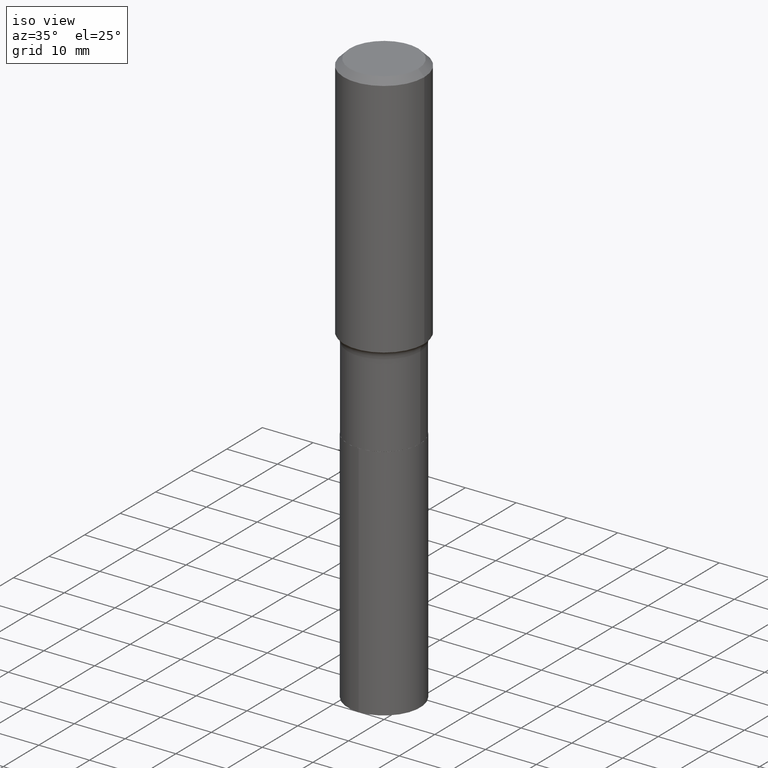
[diagram: clean part render]
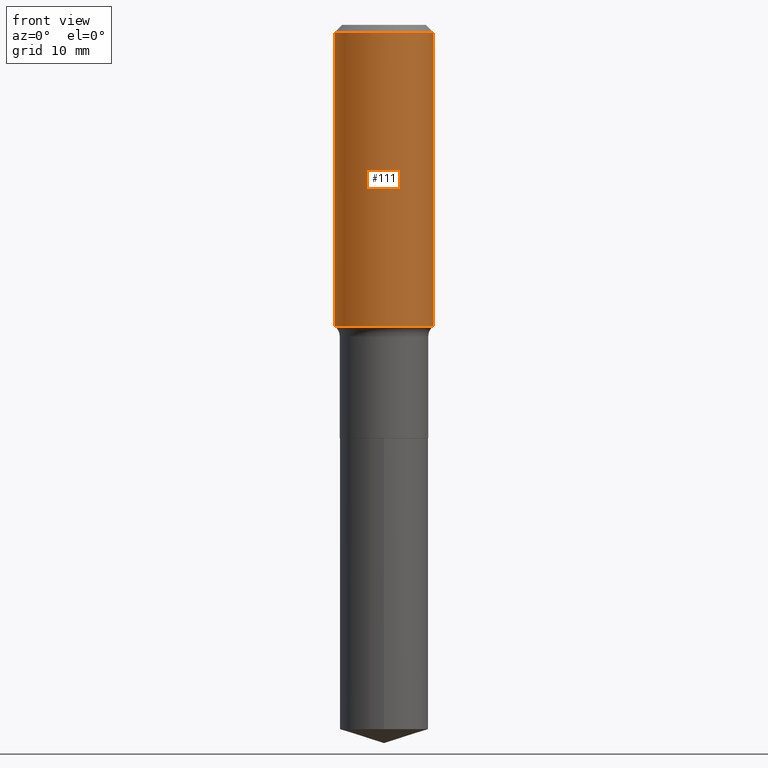
[diagram: tour spotlight — one face highlighted and labeled with its STEP entity id]
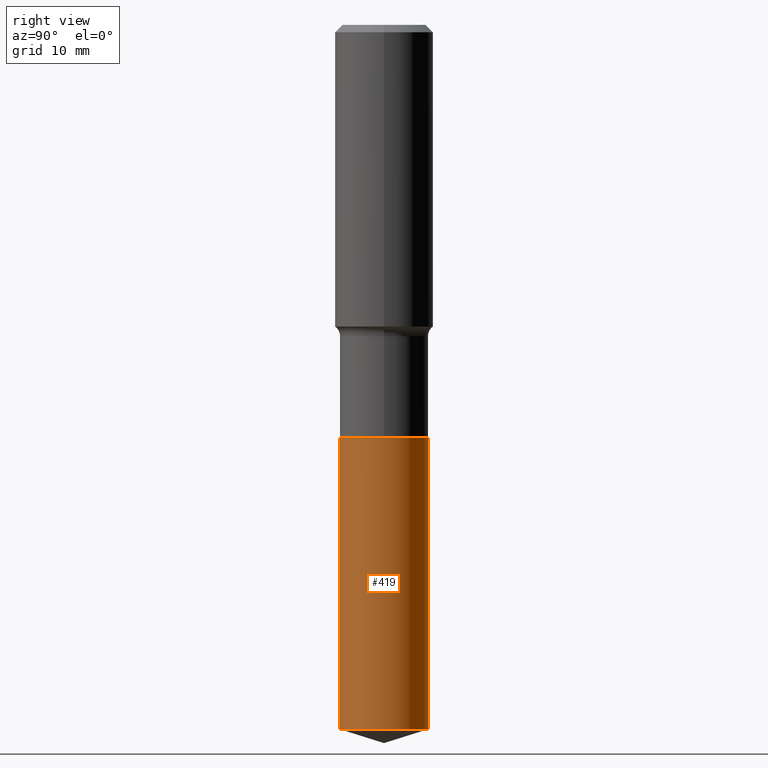
[diagram: tour spotlight — one face highlighted and labeled with its STEP entity id]
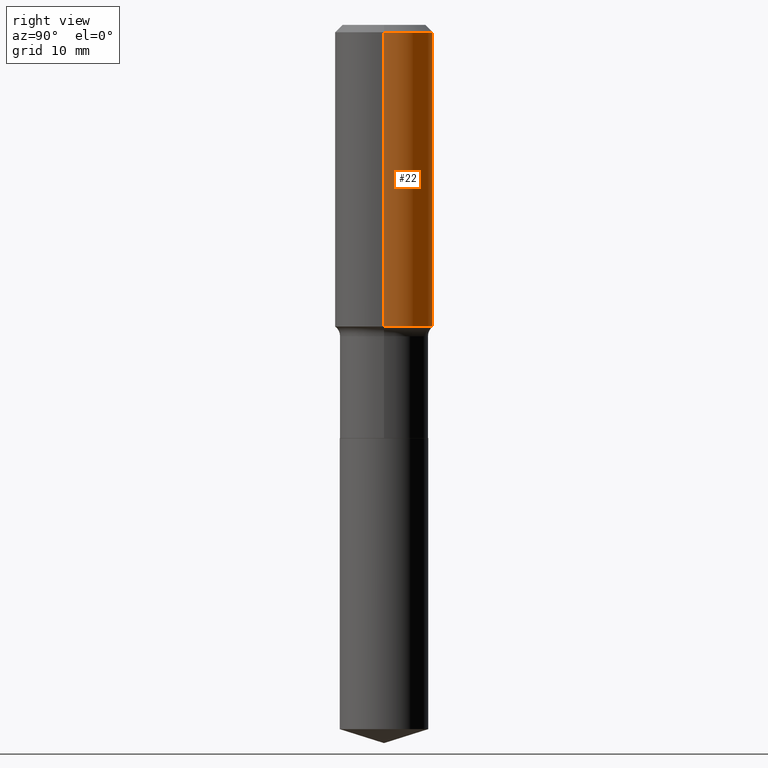
[diagram: tour spotlight — one face highlighted and labeled with its STEP entity id]
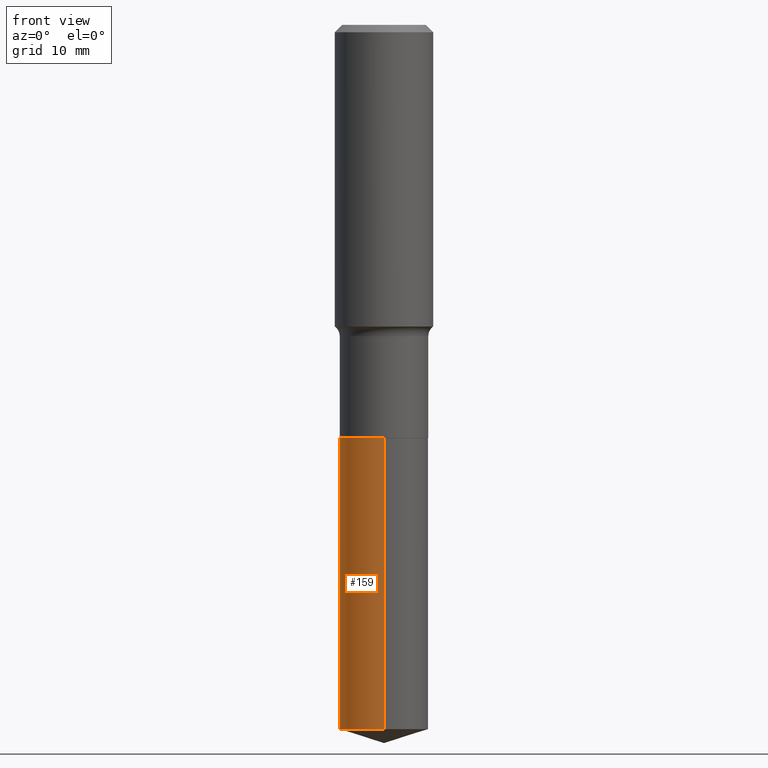
[diagram: tour spotlight — one face highlighted and labeled with its STEP entity id]
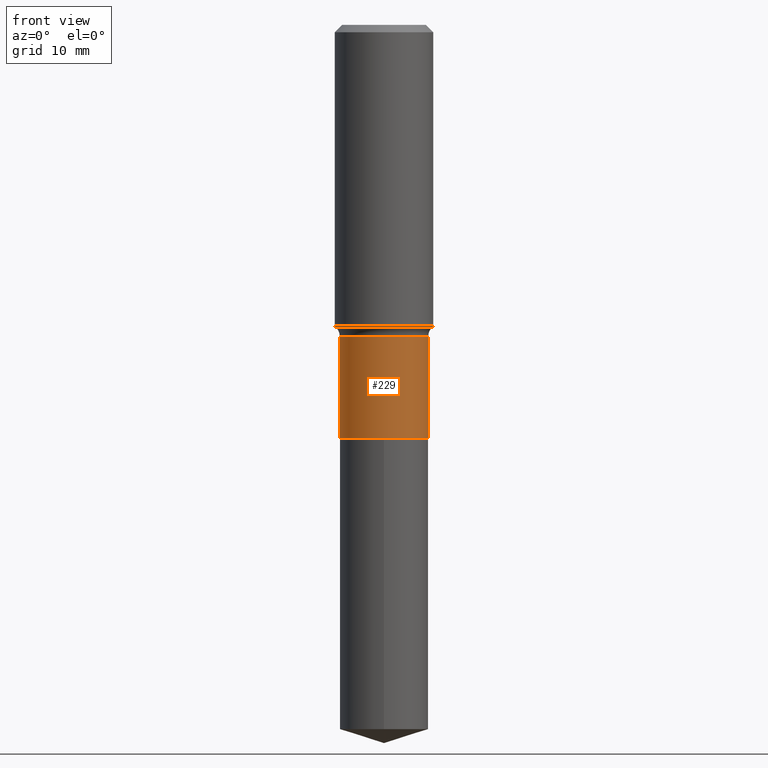
[diagram: tour spotlight — one face highlighted and labeled with its STEP entity id]
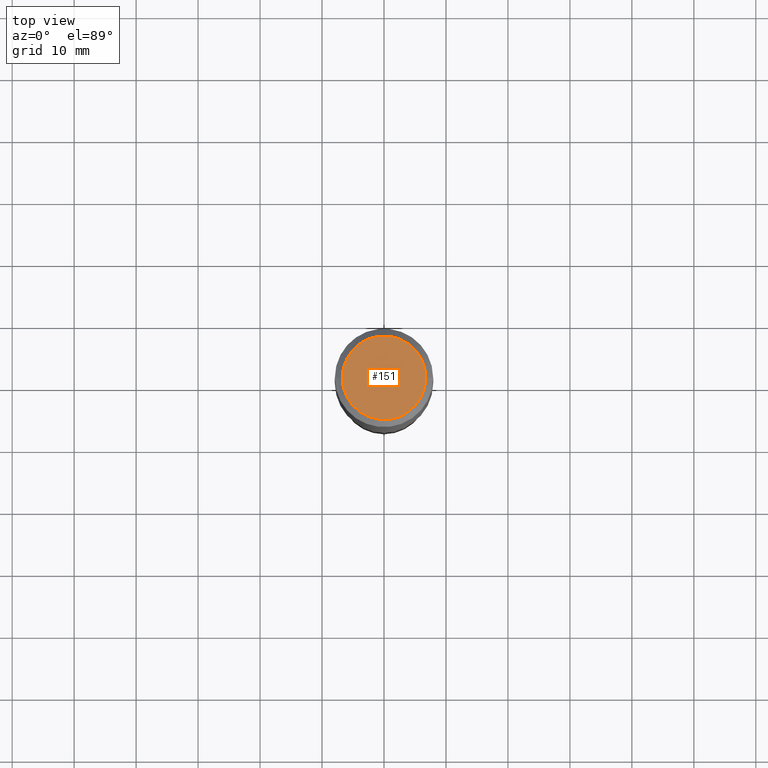
[diagram: tour spotlight — one face highlighted and labeled with its STEP entity id]
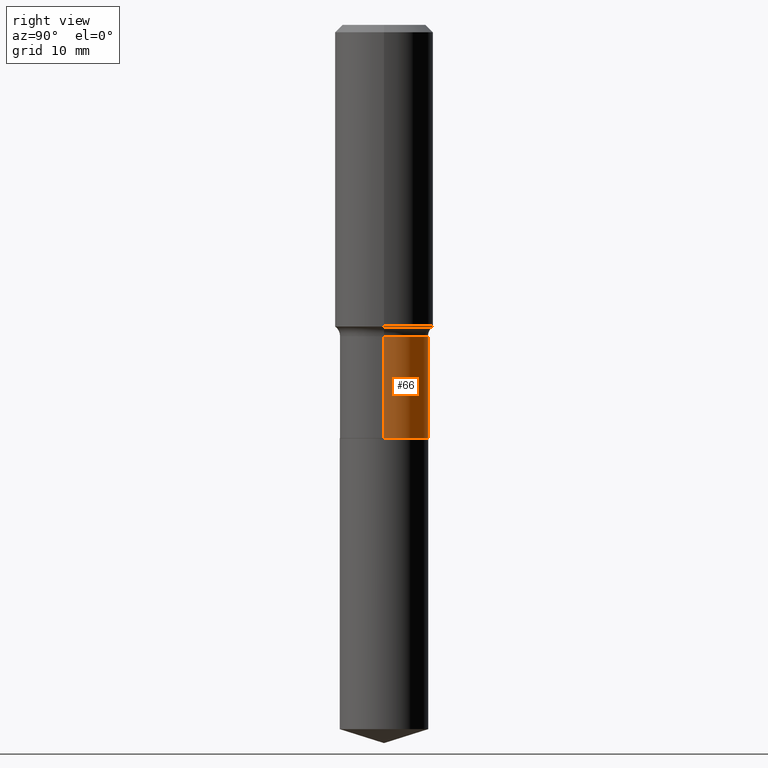
[diagram: tour spotlight — one face highlighted and labeled with its STEP entity id]
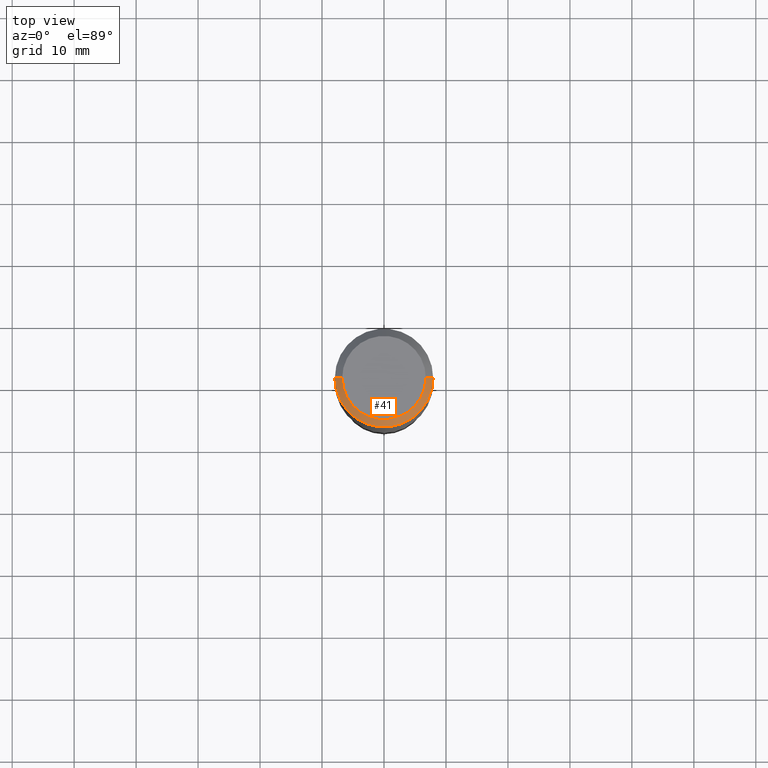
[diagram: tour spotlight — one face highlighted and labeled with its STEP entity id]
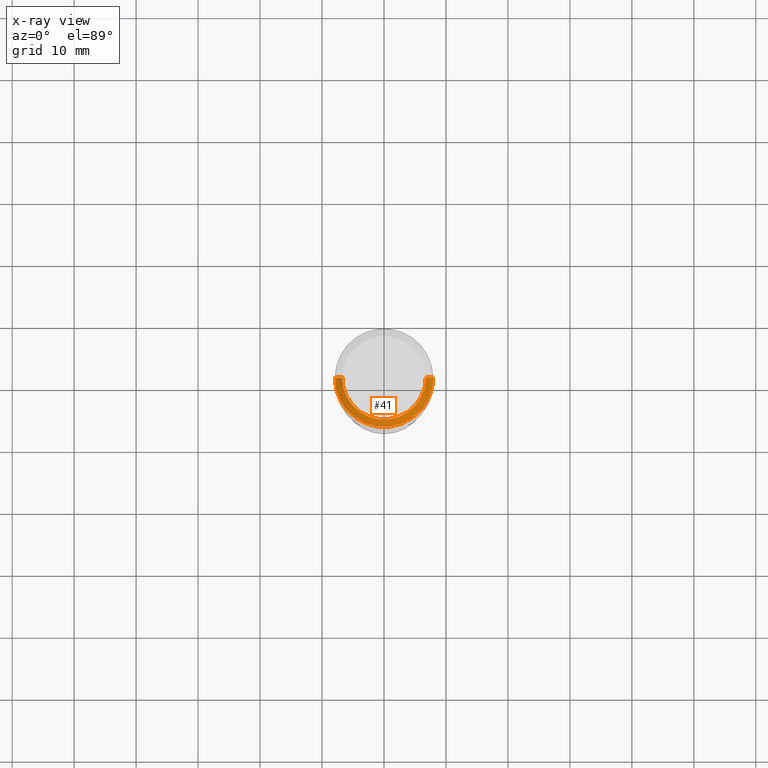
[diagram: x-ray of the same camera — body ghosted, this tour face saturated]
A machine part: a face-by-face anatomy tour. The part has 17 B-rep faces; the first image is the clean iso view, then the 8 largest visible faces are spotlighted one at a time (largest first), each with its STEP entity span.

Face 1 — front view, entity #111. In plain terms, the highlighted cylindrical surface (partial cylindrical patch) has radius 7.9375 mm, axis along (-0, 0, 1).
Definition (entity closure, byte-faithful):
#20 = CARTESIAN_POINT ( 'NONE',  ( -0.3125000000000000555, 2.220446049250313475E-15, -1.537167215704658512E-29 ) ) ;
#24 = EDGE_CURVE ( 'NONE', #148, #383, #233, .T. ) ;
#37 = CARTESIAN_POINT ( 'NONE',  ( 0.3125000000000000555, -2.182175836776958741E-15, 1.523805242436230356E-29 ) ) ;
#46 = CARTESIAN_POINT ( 'NONE',  ( 0.000000000000000000, 0.000000000000000000, 0.000000000000000000 ) ) ;
#71 = DIRECTION ( 'NONE',  ( -2.445468806185136597E-29, 3.491481338843145583E-15, 1.000000000000000000 ) ) ;
#90 = AXIS2_PLACEMENT_3D ( 'NONE', #98, #71, #180 ) ;
#98 = CARTESIAN_POINT ( 'NONE',  ( 1.146313502899289261E-30, -1.636631877582734044E-16, -0.04687500000000027062 ) ) ;
#103 = EDGE_CURVE ( 'NONE', #232, #148, #489, .T. ) ;
#111 = ADVANCED_FACE ( 'NONE', ( #354 ), #473, .T. ) ;
#144 = ORIENTED_EDGE ( 'NONE', *, *, #103, .T. ) ;
#148 = VERTEX_POINT ( 'NONE', #316 ) ;
#157 = DIRECTION ( 'NONE',  ( -2.445468806185136597E-29, 3.491481338843145583E-15, 1.000000000000000000 ) ) ;
#158 = VECTOR ( 'NONE', #186, 39.37007874015748143 ) ;
#169 = LINE ( 'NONE', #20, #179 ) ;
#179 = VECTOR ( 'NONE', #455, 39.37007874015748143 ) ;
#180 = DIRECTION ( 'NONE',  ( 1.000000000000000000, -6.982962677686266711E-15, 0.000000000000000000 ) ) ;
#186 = DIRECTION ( 'NONE',  ( -2.445468806185136877E-29, 3.491481338843145188E-15, 1.000000000000000000 ) ) ;
#217 = VERTEX_POINT ( 'NONE', #442 ) ;
#232 = VERTEX_POINT ( 'NONE', #296 ) ;
#233 = LINE ( 'NONE', #37, #158 ) ;
#241 = EDGE_CURVE ( 'NONE', #217, #383, #382, .T. ) ;
#265 = ORIENTED_EDGE ( 'NONE', *, *, #24, .T. ) ;
#285 = ORIENTED_EDGE ( 'NONE', *, *, #287, .F. ) ;
#287 = EDGE_CURVE ( 'NONE', #232, #217, #169, .T. ) ;
#288 = CARTESIAN_POINT ( 'NONE',  ( 0.3125000000000000000, -2.345839024535231998E-15, -0.04687500000000027062 ) ) ;
#296 = CARTESIAN_POINT ( 'NONE',  ( -0.3125000000000001665, -4.468053930239329138E-15, -1.915662531281288938 ) ) ;
#316 = CARTESIAN_POINT ( 'NONE',  ( 0.3125000000000001665, -8.870675816266601355E-15, -1.915662531281288938 ) ) ;
#322 = DIRECTION ( 'NONE',  ( 1.000000000000000000, -6.982962677686268288E-15, 0.000000000000000000 ) ) ;
#349 = EDGE_LOOP ( 'NONE', ( #285, #144, #265, #369 ) ) ;
#354 = FACE_OUTER_BOUND ( 'NONE', #349, .T. ) ;
#369 = ORIENTED_EDGE ( 'NONE', *, *, #241, .F. ) ;
#382 = CIRCLE ( 'NONE', #90, 0.3125000000000000000 ) ;
#383 = VERTEX_POINT ( 'NONE', #288 ) ;
#391 = DIRECTION ( 'NONE',  ( 1.000000000000000000, -6.982962677686266711E-15, 4.876176775795936353E-29 ) ) ;
#394 = DIRECTION ( 'NONE',  ( -2.445468806185136597E-29, 3.491481338843145583E-15, 1.000000000000000000 ) ) ;
#442 = CARTESIAN_POINT ( 'NONE',  ( -0.3125000000000000000, -1.205635534373644460E-15, -0.04687500000000027062 ) ) ;
#446 = AXIS2_PLACEMENT_3D ( 'NONE', #46, #157, #391 ) ;
#455 = DIRECTION ( 'NONE',  ( -2.445468806185136877E-29, 3.491481338843145188E-15, 1.000000000000000000 ) ) ;
#465 = CARTESIAN_POINT ( 'NONE',  ( 4.684692963426050307E-29, -6.688499979489643797E-15, -1.915662531281288938 ) ) ;
#466 = AXIS2_PLACEMENT_3D ( 'NONE', #465, #394, #322 ) ;
#473 = CYLINDRICAL_SURFACE ( 'NONE', #446, 0.3125000000000000555 ) ;
#489 = CIRCLE ( 'NONE', #466, 0.3125000000000001665 ) ;

Face 2 — right view, entity #419. In plain terms, the highlighted cylindrical surface (partial cylindrical patch) has radius 7.1437 mm, axis along (-0, 0, 1).
Definition (entity closure, byte-faithful):
#1 = AXIS2_PLACEMENT_3D ( 'NONE', #376, #208, #325 ) ;
#2 = ORIENTED_EDGE ( 'NONE', *, *, #140, .F. ) ;
#9 = VECTOR ( 'NONE', #10, 39.37007874015748143 ) ;
#10 = DIRECTION ( 'NONE',  ( -2.445244707240388193E-29, 3.491802261286945362E-15, 1.000000000000000000 ) ) ;
#48 = CARTESIAN_POINT ( 'NONE',  ( -1.963958253099198220E-15, -0.2812500000000091593, -2.624999999999998224 ) ) ;
#60 = EDGE_CURVE ( 'NONE', #270, #409, #178, .T. ) ;
#63 = CYLINDRICAL_SURFACE ( 'NONE', #1, 0.2812500000000000000 ) ;
#65 = ORIENTED_EDGE ( 'NONE', *, *, #190, .T. ) ;
#75 = ORIENTED_EDGE ( 'NONE', *, *, #60, .F. ) ;
#125 = DIRECTION ( 'NONE',  ( -6.982962677686266711E-15, -1.000000000000000000, 3.885294924322507688E-15 ) ) ;
#140 = EDGE_CURVE ( 'NONE', #228, #270, #274, .T. ) ;
#141 = EDGE_LOOP ( 'NONE', ( #65, #196, #75, #2 ) ) ;
#168 = CARTESIAN_POINT ( 'NONE',  ( 1.998401444325391424E-15, 0.2812499999999908407, -2.625000000000000444 ) ) ;
#173 = DIRECTION ( 'NONE',  ( -2.445244707240388193E-29, 3.491802261286945362E-15, 1.000000000000000000 ) ) ;
#176 = LINE ( 'NONE', #253, #279 ) ;
#178 = CIRCLE ( 'NONE', #471, 0.2812500000000000000 ) ;
#187 = AXIS2_PLACEMENT_3D ( 'NONE', #485, #371, #205 ) ;
#190 = EDGE_CURVE ( 'NONE', #228, #450, #400, .T. ) ;
#196 = ORIENTED_EDGE ( 'NONE', *, *, #306, .T. ) ;
#205 = DIRECTION ( 'NONE',  ( -6.982962677686266711E-15, -1.000000000000000000, 3.885294924322507688E-15 ) ) ;
#208 = DIRECTION ( 'NONE',  ( -2.445244707240388193E-29, 3.491802261286945362E-15, 1.000000000000000000 ) ) ;
#222 = CARTESIAN_POINT ( 'NONE',  ( -1.963958253099198220E-15, -0.2812500000000091593, -2.624999999999998224 ) ) ;
#228 = VERTEX_POINT ( 'NONE', #447 ) ;
#253 = CARTESIAN_POINT ( 'NONE',  ( 1.998401444325345670E-15, 0.2812499999999908407, -2.625000000000000444 ) ) ;
#270 = VERTEX_POINT ( 'NONE', #222 ) ;
#274 = LINE ( 'NONE', #48, #9 ) ;
#279 = VECTOR ( 'NONE', #173, 39.37007874015748143 ) ;
#306 = EDGE_CURVE ( 'NONE', #450, #409, #176, .T. ) ;
#325 = DIRECTION ( 'NONE',  ( -6.982962677686266711E-15, -1.000000000000000000, 3.885294924322507688E-15 ) ) ;
#341 = FACE_OUTER_BOUND ( 'NONE', #141, .T. ) ;
#359 = DIRECTION ( 'NONE',  ( -2.445244707240388193E-29, 3.491802261286945362E-15, 1.000000000000000000 ) ) ;
#371 = DIRECTION ( 'NONE',  ( -2.445244707240388193E-29, 3.491802261286945362E-15, 1.000000000000000000 ) ) ;
#376 = CARTESIAN_POINT ( 'NONE',  ( 6.419355616235982445E-29, -9.165138514463255034E-15, -2.624999999999999556 ) ) ;
#389 = CARTESIAN_POINT ( 'NONE',  ( 6.419355616235982445E-29, -9.165138514463255034E-15, -2.624999999999999556 ) ) ;
#400 = CIRCLE ( 'NONE', #187, 0.2812500000000000000 ) ;
#403 = CARTESIAN_POINT ( 'NONE',  ( 1.998401444325390636E-15, 0.2812499999999843459, -4.473822215627788701 ) ) ;
#409 = VERTEX_POINT ( 'NONE', #168 ) ;
#419 = ADVANCED_FACE ( 'NONE', ( #341 ), #63, .T. ) ;
#447 = CARTESIAN_POINT ( 'NONE',  ( -1.963958253099152466E-15, -0.2812500000000155431, -4.473822215627786036 ) ) ;
#450 = VERTEX_POINT ( 'NONE', #403 ) ;
#471 = AXIS2_PLACEMENT_3D ( 'NONE', #389, #359, #125 ) ;
#485 = CARTESIAN_POINT ( 'NONE',  ( 1.094017835362827673E-28, -1.562086010770990401E-14, -4.473822215627787813 ) ) ;

Face 3 — right view, entity #22. In plain terms, the highlighted cylindrical surface (partial cylindrical patch) has radius 7.9375 mm, axis along (-0, 0, 1).
Definition (entity closure, byte-faithful):
#20 = CARTESIAN_POINT ( 'NONE',  ( -0.3125000000000000555, 2.220446049250313475E-15, -1.537167215704658512E-29 ) ) ;
#22 = ADVANCED_FACE ( 'NONE', ( #269 ), #82, .T. ) ;
#24 = EDGE_CURVE ( 'NONE', #148, #383, #233, .T. ) ;
#37 = CARTESIAN_POINT ( 'NONE',  ( 0.3125000000000000555, -2.182175836776958741E-15, 1.523805242436230356E-29 ) ) ;
#64 = CARTESIAN_POINT ( 'NONE',  ( 4.684692963426050307E-29, -6.688499979489643797E-15, -1.915662531281288938 ) ) ;
#72 = EDGE_LOOP ( 'NONE', ( #210, #477, #424, #109 ) ) ;
#78 = AXIS2_PLACEMENT_3D ( 'NONE', #387, #464, #117 ) ;
#82 = CYLINDRICAL_SURFACE ( 'NONE', #78, 0.3125000000000000555 ) ;
#108 = AXIS2_PLACEMENT_3D ( 'NONE', #212, #130, #175 ) ;
#109 = ORIENTED_EDGE ( 'NONE', *, *, #24, .F. ) ;
#117 = DIRECTION ( 'NONE',  ( 1.000000000000000000, -6.982962677686266711E-15, 4.876176775795936353E-29 ) ) ;
#130 = DIRECTION ( 'NONE',  ( -2.445468806185136597E-29, 3.491481338843145583E-15, 1.000000000000000000 ) ) ;
#139 = DIRECTION ( 'NONE',  ( 1.000000000000000000, -6.982962677686268288E-15, 0.000000000000000000 ) ) ;
#148 = VERTEX_POINT ( 'NONE', #316 ) ;
#158 = VECTOR ( 'NONE', #186, 39.37007874015748143 ) ;
#169 = LINE ( 'NONE', #20, #179 ) ;
#175 = DIRECTION ( 'NONE',  ( 1.000000000000000000, -6.982962677686266711E-15, 0.000000000000000000 ) ) ;
#179 = VECTOR ( 'NONE', #455, 39.37007874015748143 ) ;
#186 = DIRECTION ( 'NONE',  ( -2.445468806185136877E-29, 3.491481338843145188E-15, 1.000000000000000000 ) ) ;
#210 = ORIENTED_EDGE ( 'NONE', *, *, #337, .T. ) ;
#212 = CARTESIAN_POINT ( 'NONE',  ( 1.146313502899289261E-30, -1.636631877582734044E-16, -0.04687500000000027062 ) ) ;
#216 = DIRECTION ( 'NONE',  ( -2.445468806185136597E-29, 3.491481338843145583E-15, 1.000000000000000000 ) ) ;
#217 = VERTEX_POINT ( 'NONE', #442 ) ;
#232 = VERTEX_POINT ( 'NONE', #296 ) ;
#233 = LINE ( 'NONE', #37, #158 ) ;
#269 = FACE_OUTER_BOUND ( 'NONE', #72, .T. ) ;
#287 = EDGE_CURVE ( 'NONE', #232, #217, #169, .T. ) ;
#288 = CARTESIAN_POINT ( 'NONE',  ( 0.3125000000000000000, -2.345839024535231998E-15, -0.04687500000000027062 ) ) ;
#296 = CARTESIAN_POINT ( 'NONE',  ( -0.3125000000000001665, -4.468053930239329138E-15, -1.915662531281288938 ) ) ;
#309 = AXIS2_PLACEMENT_3D ( 'NONE', #64, #216, #139 ) ;
#316 = CARTESIAN_POINT ( 'NONE',  ( 0.3125000000000001665, -8.870675816266601355E-15, -1.915662531281288938 ) ) ;
#323 = CIRCLE ( 'NONE', #108, 0.3125000000000000000 ) ;
#337 = EDGE_CURVE ( 'NONE', #148, #232, #416, .T. ) ;
#372 = EDGE_CURVE ( 'NONE', #383, #217, #323, .T. ) ;
#383 = VERTEX_POINT ( 'NONE', #288 ) ;
#387 = CARTESIAN_POINT ( 'NONE',  ( 0.000000000000000000, 0.000000000000000000, 0.000000000000000000 ) ) ;
#416 = CIRCLE ( 'NONE', #309, 0.3125000000000001665 ) ;
#424 = ORIENTED_EDGE ( 'NONE', *, *, #372, .F. ) ;
#442 = CARTESIAN_POINT ( 'NONE',  ( -0.3125000000000000000, -1.205635534373644460E-15, -0.04687500000000027062 ) ) ;
#455 = DIRECTION ( 'NONE',  ( -2.445468806185136877E-29, 3.491481338843145188E-15, 1.000000000000000000 ) ) ;
#464 = DIRECTION ( 'NONE',  ( -2.445468806185136597E-29, 3.491481338843145583E-15, 1.000000000000000000 ) ) ;
#477 = ORIENTED_EDGE ( 'NONE', *, *, #287, .T. ) ;

Face 4 — front view, entity #159. In plain terms, the highlighted cylindrical surface (partial cylindrical patch) has radius 7.1437 mm, axis along (-0, 0, 1).
Definition (entity closure, byte-faithful):
#6 = DIRECTION ( 'NONE',  ( -2.445244707240388193E-29, 3.491802261286945362E-15, 1.000000000000000000 ) ) ;
#9 = VECTOR ( 'NONE', #10, 39.37007874015748143 ) ;
#10 = DIRECTION ( 'NONE',  ( -2.445244707240388193E-29, 3.491802261286945362E-15, 1.000000000000000000 ) ) ;
#32 = ORIENTED_EDGE ( 'NONE', *, *, #306, .F. ) ;
#48 = CARTESIAN_POINT ( 'NONE',  ( -1.963958253099198220E-15, -0.2812500000000091593, -2.624999999999998224 ) ) ;
#70 = AXIS2_PLACEMENT_3D ( 'NONE', #294, #246, #479 ) ;
#85 = CARTESIAN_POINT ( 'NONE',  ( 1.094017835362827673E-28, -1.562086010770990401E-14, -4.473822215627787813 ) ) ;
#120 = EDGE_CURVE ( 'NONE', #450, #228, #219, .T. ) ;
#122 = DIRECTION ( 'NONE',  ( -6.982962677686266711E-15, -1.000000000000000000, 3.885294924322507688E-15 ) ) ;
#140 = EDGE_CURVE ( 'NONE', #228, #270, #274, .T. ) ;
#159 = ADVANCED_FACE ( 'NONE', ( #430 ), #312, .T. ) ;
#168 = CARTESIAN_POINT ( 'NONE',  ( 1.998401444325391424E-15, 0.2812499999999908407, -2.625000000000000444 ) ) ;
#173 = DIRECTION ( 'NONE',  ( -2.445244707240388193E-29, 3.491802261286945362E-15, 1.000000000000000000 ) ) ;
#174 = EDGE_LOOP ( 'NONE', ( #32, #345, #223, #177 ) ) ;
#176 = LINE ( 'NONE', #253, #279 ) ;
#177 = ORIENTED_EDGE ( 'NONE', *, *, #317, .F. ) ;
#219 = CIRCLE ( 'NONE', #426, 0.2812500000000000000 ) ;
#222 = CARTESIAN_POINT ( 'NONE',  ( -1.963958253099198220E-15, -0.2812500000000091593, -2.624999999999998224 ) ) ;
#223 = ORIENTED_EDGE ( 'NONE', *, *, #140, .T. ) ;
#228 = VERTEX_POINT ( 'NONE', #447 ) ;
#242 = DIRECTION ( 'NONE',  ( -6.982962677686266711E-15, -1.000000000000000000, 3.885294924322507688E-15 ) ) ;
#246 = DIRECTION ( 'NONE',  ( -2.445244707240388193E-29, 3.491802261286945362E-15, 1.000000000000000000 ) ) ;
#253 = CARTESIAN_POINT ( 'NONE',  ( 1.998401444325345670E-15, 0.2812499999999908407, -2.625000000000000444 ) ) ;
#270 = VERTEX_POINT ( 'NONE', #222 ) ;
#272 = AXIS2_PLACEMENT_3D ( 'NONE', #353, #6, #122 ) ;
#274 = LINE ( 'NONE', #48, #9 ) ;
#279 = VECTOR ( 'NONE', #173, 39.37007874015748143 ) ;
#294 = CARTESIAN_POINT ( 'NONE',  ( 6.419355616235982445E-29, -9.165138514463255034E-15, -2.624999999999999556 ) ) ;
#306 = EDGE_CURVE ( 'NONE', #450, #409, #176, .T. ) ;
#312 = CYLINDRICAL_SURFACE ( 'NONE', #272, 0.2812500000000000000 ) ;
#317 = EDGE_CURVE ( 'NONE', #409, #270, #472, .T. ) ;
#318 = DIRECTION ( 'NONE',  ( -2.445244707240388193E-29, 3.491802261286945362E-15, 1.000000000000000000 ) ) ;
#345 = ORIENTED_EDGE ( 'NONE', *, *, #120, .T. ) ;
#353 = CARTESIAN_POINT ( 'NONE',  ( 6.419355616235982445E-29, -9.165138514463255034E-15, -2.624999999999999556 ) ) ;
#403 = CARTESIAN_POINT ( 'NONE',  ( 1.998401444325390636E-15, 0.2812499999999843459, -4.473822215627788701 ) ) ;
#409 = VERTEX_POINT ( 'NONE', #168 ) ;
#426 = AXIS2_PLACEMENT_3D ( 'NONE', #85, #318, #242 ) ;
#430 = FACE_OUTER_BOUND ( 'NONE', #174, .T. ) ;
#447 = CARTESIAN_POINT ( 'NONE',  ( -1.963958253099152466E-15, -0.2812500000000155431, -4.473822215627786036 ) ) ;
#450 = VERTEX_POINT ( 'NONE', #403 ) ;
#472 = CIRCLE ( 'NONE', #70, 0.2812500000000000000 ) ;
#479 = DIRECTION ( 'NONE',  ( -6.982962677686266711E-15, -1.000000000000000000, 3.885294924322507688E-15 ) ) ;

Face 5 — front view, entity #229. In plain terms, the highlighted cylindrical surface (partial cylindrical patch) has radius 7.1437 mm, axis along (-0, 0, 1).
Definition (entity closure, byte-faithful):
#4 = CIRCLE ( 'NONE', #393, 0.2812500000000000555 ) ;
#39 = VERTEX_POINT ( 'NONE', #490 ) ;
#40 = ORIENTED_EDGE ( 'NONE', *, *, #244, .T. ) ;
#44 = AXIS2_PLACEMENT_3D ( 'NONE', #476, #55, #293 ) ;
#55 = DIRECTION ( 'NONE',  ( -2.445468806185136597E-29, 3.491481338843145583E-15, 1.000000000000000000 ) ) ;
#59 = LINE ( 'NONE', #482, #250 ) ;
#77 = VECTOR ( 'NONE', #255, 39.37007874015748143 ) ;
#91 = CARTESIAN_POINT ( 'NONE',  ( -0.2812499999999999445, -6.036544560754447675E-15, -1.978099999999999969 ) ) ;
#95 = FACE_OUTER_BOUND ( 'NONE', #259, .T. ) ;
#105 = CYLINDRICAL_SURFACE ( 'NONE', #267, 0.2812499999999999445 ) ;
#110 = ORIENTED_EDGE ( 'NONE', *, *, #226, .F. ) ;
#112 = VERTEX_POINT ( 'NONE', #91 ) ;
#127 = LINE ( 'NONE', #215, #77 ) ;
#136 = DIRECTION ( 'NONE',  ( -2.445468806185136597E-29, 3.491481338843145583E-15, 1.000000000000000000 ) ) ;
#137 = ORIENTED_EDGE ( 'NONE', *, *, #469, .T. ) ;
#213 = DIRECTION ( 'NONE',  ( 1.000000000000000000, -6.982962677686268288E-15, 4.876176775795935793E-29 ) ) ;
#215 = CARTESIAN_POINT ( 'NONE',  ( 0.2812499999999999445, -1.963958253099262512E-15, 1.371424718192606732E-29 ) ) ;
#226 = EDGE_CURVE ( 'NONE', #457, #112, #59, .T. ) ;
#229 = ADVANCED_FACE ( 'NONE', ( #95 ), #105, .T. ) ;
#244 = EDGE_CURVE ( 'NONE', #457, #335, #4, .T. ) ;
#250 = VECTOR ( 'NONE', #452, 39.37007874015748143 ) ;
#255 = DIRECTION ( 'NONE',  ( -2.445468806185136877E-29, 3.491481338843145188E-15, 1.000000000000000000 ) ) ;
#259 = EDGE_LOOP ( 'NONE', ( #110, #40, #137, #463 ) ) ;
#262 = CIRCLE ( 'NONE', #44, 0.2812499999999999445 ) ;
#267 = AXIS2_PLACEMENT_3D ( 'NONE', #374, #364, #213 ) ;
#289 = CARTESIAN_POINT ( 'NONE',  ( 6.418132881832889644E-29, -9.163392773793832742E-15, -2.624499999999999389 ) ) ;
#293 = DIRECTION ( 'NONE',  ( 1.000000000000000000, -6.982962677686268288E-15, 0.000000000000000000 ) ) ;
#335 = VERTEX_POINT ( 'NONE', #449 ) ;
#342 = DIRECTION ( 'NONE',  ( 1.000000000000000000, -6.982962677686268288E-15, 0.000000000000000000 ) ) ;
#347 = EDGE_CURVE ( 'NONE', #112, #39, #262, .T. ) ;
#364 = DIRECTION ( 'NONE',  ( -2.445468806185136597E-29, 3.491481338843145583E-15, 1.000000000000000000 ) ) ;
#374 = CARTESIAN_POINT ( 'NONE',  ( 0.000000000000000000, 0.000000000000000000, 0.000000000000000000 ) ) ;
#393 = AXIS2_PLACEMENT_3D ( 'NONE', #289, #136, #342 ) ;
#449 = CARTESIAN_POINT ( 'NONE',  ( 0.2812500000000000555, -1.112735102689309604E-14, -2.624499999999999389 ) ) ;
#452 = DIRECTION ( 'NONE',  ( -2.445468806185136877E-29, 3.491481338843145188E-15, 1.000000000000000000 ) ) ;
#457 = VERTEX_POINT ( 'NONE', #486 ) ;
#463 = ORIENTED_EDGE ( 'NONE', *, *, #347, .F. ) ;
#469 = EDGE_CURVE ( 'NONE', #335, #39, #127, .T. ) ;
#476 = CARTESIAN_POINT ( 'NONE',  ( 4.837381845514818242E-29, -6.906499236365626153E-15, -1.978099999999999969 ) ) ;
#482 = CARTESIAN_POINT ( 'NONE',  ( -0.2812499999999999445, 1.998401444325281378E-15, -1.383450494134191988E-29 ) ) ;
#486 = CARTESIAN_POINT ( 'NONE',  ( -0.2812500000000000555, -6.036544560754446886E-15, -2.624499999999999389 ) ) ;
#490 = CARTESIAN_POINT ( 'NONE',  ( 0.2812499999999999445, -8.870457489464887877E-15, -1.978099999999999969 ) ) ;

Face 6 — top view, entity #151. In plain terms, the highlighted planar face has unit normal (0, -0, -1).
Definition (entity closure, byte-faithful):
#5 = EDGE_LOOP ( 'NONE', ( #153, #418 ) ) ;
#51 = DIRECTION ( 'NONE',  ( -1.000000000000000000, 6.982962677686265922E-15, -4.876176775795935793E-29 ) ) ;
#58 = CIRCLE ( 'NONE', #344, 0.2656250000000000000 ) ;
#87 = DIRECTION ( 'NONE',  ( 1.000000000000000000, -6.982962677686268288E-15, 4.876286914311434227E-29 ) ) ;
#102 = CARTESIAN_POINT ( 'NONE',  ( 0.2656250000000000000, -2.064944296359970168E-15, 6.505936120484021373E-18 ) ) ;
#118 = DIRECTION ( 'NONE',  ( -2.445468806185136597E-29, 3.491481338843145583E-15, 1.000000000000000000 ) ) ;
#121 = CARTESIAN_POINT ( 'NONE',  ( -7.955031918821650812E-47, 1.135767727816383927E-32, 3.252968060235157842E-18 ) ) ;
#133 = AXIS2_PLACEMENT_3D ( 'NONE', #121, #276, #51 ) ;
#135 = CARTESIAN_POINT ( 'NONE',  ( -0.2656250000000000000, 1.936681055139549843E-15, 6.505936120457058354E-18 ) ) ;
#151 = ADVANCED_FACE ( 'NONE', ( #396 ), #197, .F. ) ;
#153 = ORIENTED_EDGE ( 'NONE', *, *, #384, .T. ) ;
#156 = CARTESIAN_POINT ( 'NONE',  ( -1.591006383764330162E-46, 2.271535455632767854E-32, 6.505936120470315685E-18 ) ) ;
#163 = EDGE_CURVE ( 'NONE', #301, #348, #58, .T. ) ;
#166 = AXIS2_PLACEMENT_3D ( 'NONE', #221, #407, #484 ) ;
#197 = PLANE ( 'NONE',  #133 ) ;
#221 = CARTESIAN_POINT ( 'NONE',  ( -1.591006383764330162E-46, 2.271535455632767854E-32, 6.505936120470315685E-18 ) ) ;
#276 = DIRECTION ( 'NONE',  ( 2.438088387897960049E-29, -3.491481338843145188E-15, -1.000000000000000000 ) ) ;
#301 = VERTEX_POINT ( 'NONE', #102 ) ;
#344 = AXIS2_PLACEMENT_3D ( 'NONE', #156, #118, #87 ) ;
#348 = VERTEX_POINT ( 'NONE', #135 ) ;
#384 = EDGE_CURVE ( 'NONE', #348, #301, #432, .T. ) ;
#396 = FACE_OUTER_BOUND ( 'NONE', #5, .T. ) ;
#407 = DIRECTION ( 'NONE',  ( -2.445468806185136597E-29, 3.491481338843145583E-15, 1.000000000000000000 ) ) ;
#418 = ORIENTED_EDGE ( 'NONE', *, *, #163, .T. ) ;
#432 = CIRCLE ( 'NONE', #166, 0.2656250000000000000 ) ;
#484 = DIRECTION ( 'NONE',  ( 1.000000000000000000, -6.982962677686268288E-15, 4.876286914311434227E-29 ) ) ;

Face 7 — right view, entity #66. In plain terms, the highlighted cylindrical surface (partial cylindrical patch) has radius 7.1437 mm, axis along (-0, 0, 1).
Definition (entity closure, byte-faithful):
#12 = CARTESIAN_POINT ( 'NONE',  ( 0.000000000000000000, 0.000000000000000000, 0.000000000000000000 ) ) ;
#39 = VERTEX_POINT ( 'NONE', #490 ) ;
#59 = LINE ( 'NONE', #482, #250 ) ;
#66 = ADVANCED_FACE ( 'NONE', ( #470 ), #390, .T. ) ;
#77 = VECTOR ( 'NONE', #255, 39.37007874015748143 ) ;
#79 = ORIENTED_EDGE ( 'NONE', *, *, #469, .F. ) ;
#91 = CARTESIAN_POINT ( 'NONE',  ( -0.2812499999999999445, -6.036544560754447675E-15, -1.978099999999999969 ) ) ;
#106 = ORIENTED_EDGE ( 'NONE', *, *, #226, .T. ) ;
#112 = VERTEX_POINT ( 'NONE', #91 ) ;
#114 = CIRCLE ( 'NONE', #375, 0.2812499999999999445 ) ;
#127 = LINE ( 'NONE', #215, #77 ) ;
#131 = CARTESIAN_POINT ( 'NONE',  ( 4.837381845514818242E-29, -6.906499236365626153E-15, -1.978099999999999969 ) ) ;
#195 = CIRCLE ( 'NONE', #435, 0.2812500000000000555 ) ;
#215 = CARTESIAN_POINT ( 'NONE',  ( 0.2812499999999999445, -1.963958253099262512E-15, 1.371424718192606732E-29 ) ) ;
#226 = EDGE_CURVE ( 'NONE', #457, #112, #59, .T. ) ;
#250 = VECTOR ( 'NONE', #452, 39.37007874015748143 ) ;
#255 = DIRECTION ( 'NONE',  ( -2.445468806185136877E-29, 3.491481338843145188E-15, 1.000000000000000000 ) ) ;
#261 = AXIS2_PLACEMENT_3D ( 'NONE', #12, #281, #439 ) ;
#263 = ORIENTED_EDGE ( 'NONE', *, *, #271, .T. ) ;
#271 = EDGE_CURVE ( 'NONE', #335, #457, #195, .T. ) ;
#275 = EDGE_CURVE ( 'NONE', #39, #112, #114, .T. ) ;
#281 = DIRECTION ( 'NONE',  ( -2.445468806185136597E-29, 3.491481338843145583E-15, 1.000000000000000000 ) ) ;
#300 = CARTESIAN_POINT ( 'NONE',  ( 6.418132881832889644E-29, -9.163392773793832742E-15, -2.624499999999999389 ) ) ;
#335 = VERTEX_POINT ( 'NONE', #449 ) ;
#339 = DIRECTION ( 'NONE',  ( 1.000000000000000000, -6.982962677686268288E-15, 0.000000000000000000 ) ) ;
#368 = DIRECTION ( 'NONE',  ( -2.445468806185136597E-29, 3.491481338843145583E-15, 1.000000000000000000 ) ) ;
#375 = AXIS2_PLACEMENT_3D ( 'NONE', #131, #368, #377 ) ;
#377 = DIRECTION ( 'NONE',  ( 1.000000000000000000, -6.982962677686268288E-15, 0.000000000000000000 ) ) ;
#381 = EDGE_LOOP ( 'NONE', ( #263, #106, #454, #79 ) ) ;
#390 = CYLINDRICAL_SURFACE ( 'NONE', #261, 0.2812499999999999445 ) ;
#401 = DIRECTION ( 'NONE',  ( -2.445468806185136597E-29, 3.491481338843145583E-15, 1.000000000000000000 ) ) ;
#435 = AXIS2_PLACEMENT_3D ( 'NONE', #300, #401, #339 ) ;
#439 = DIRECTION ( 'NONE',  ( 1.000000000000000000, -6.982962677686268288E-15, 4.876176775795935793E-29 ) ) ;
#449 = CARTESIAN_POINT ( 'NONE',  ( 0.2812500000000000555, -1.112735102689309604E-14, -2.624499999999999389 ) ) ;
#452 = DIRECTION ( 'NONE',  ( -2.445468806185136877E-29, 3.491481338843145188E-15, 1.000000000000000000 ) ) ;
#454 = ORIENTED_EDGE ( 'NONE', *, *, #275, .F. ) ;
#457 = VERTEX_POINT ( 'NONE', #486 ) ;
#469 = EDGE_CURVE ( 'NONE', #335, #39, #127, .T. ) ;
#470 = FACE_OUTER_BOUND ( 'NONE', #381, .T. ) ;
#482 = CARTESIAN_POINT ( 'NONE',  ( -0.2812499999999999445, 1.998401444325281378E-15, -1.383450494134191988E-29 ) ) ;
#486 = CARTESIAN_POINT ( 'NONE',  ( -0.2812500000000000555, -6.036544560754446886E-15, -2.624499999999999389 ) ) ;
#490 = CARTESIAN_POINT ( 'NONE',  ( 0.2812499999999999445, -8.870457489464887877E-15, -1.978099999999999969 ) ) ;

Face 8 — top view, entity #41. An x-ray twin of the same camera follows (body ghosted, this face saturated) — the face is partly hidden behind the body. In plain terms, the highlighted conical surface has half-angle 45 deg.
Definition (entity closure, byte-faithful):
#8 = DIRECTION ( 'NONE',  ( -1.000000000000000000, 6.982962677686266711E-15, 0.000000000000000000 ) ) ;
#18 = DIRECTION ( 'NONE',  ( 0.7071067811865453523, -7.319954787623248157E-15, -0.7071067811865496822 ) ) ;
#28 = AXIS2_PLACEMENT_3D ( 'NONE', #357, #86, #8 ) ;
#29 = DIRECTION ( 'NONE',  ( -0.7071067811865453523, 2.468850131082234184E-15, -0.7071067811865496822 ) ) ;
#41 = ADVANCED_FACE ( 'NONE', ( #145 ), #392, .T. ) ;
#67 = VECTOR ( 'NONE', #29, 39.37007874015748143 ) ;
#71 = DIRECTION ( 'NONE',  ( -2.445468806185136597E-29, 3.491481338843145583E-15, 1.000000000000000000 ) ) ;
#81 = ORIENTED_EDGE ( 'NONE', *, *, #384, .F. ) ;
#86 = DIRECTION ( 'NONE',  ( 2.445468806185136597E-29, -3.491481338843145583E-15, -1.000000000000000000 ) ) ;
#90 = AXIS2_PLACEMENT_3D ( 'NONE', #98, #71, #180 ) ;
#98 = CARTESIAN_POINT ( 'NONE',  ( 1.146313502899289261E-30, -1.636631877582734044E-16, -0.04687500000000027062 ) ) ;
#102 = CARTESIAN_POINT ( 'NONE',  ( 0.2656250000000000000, -2.064944296359970168E-15, 6.505936120484021373E-18 ) ) ;
#128 = CARTESIAN_POINT ( 'NONE',  ( 0.3125000000000000000, -2.307568812061876870E-15, -0.04687500000000027062 ) ) ;
#135 = CARTESIAN_POINT ( 'NONE',  ( -0.2656250000000000000, 1.936681055139549843E-15, 6.505936120457058354E-18 ) ) ;
#145 = FACE_OUTER_BOUND ( 'NONE', #402, .T. ) ;
#166 = AXIS2_PLACEMENT_3D ( 'NONE', #221, #407, #484 ) ;
#170 = ORIENTED_EDGE ( 'NONE', *, *, #488, .T. ) ;
#180 = DIRECTION ( 'NONE',  ( 1.000000000000000000, -6.982962677686266711E-15, 0.000000000000000000 ) ) ;
#217 = VERTEX_POINT ( 'NONE', #442 ) ;
#221 = CARTESIAN_POINT ( 'NONE',  ( -1.591006383764330162E-46, 2.271535455632767854E-32, 6.505936120470315685E-18 ) ) ;
#241 = EDGE_CURVE ( 'NONE', #217, #383, #382, .T. ) ;
#245 = LINE ( 'NONE', #252, #67 ) ;
#252 = CARTESIAN_POINT ( 'NONE',  ( -0.3125000000000000000, 2.018512649018685091E-15, -0.04687500000000027062 ) ) ;
#288 = CARTESIAN_POINT ( 'NONE',  ( 0.3125000000000000000, -2.345839024535231998E-15, -0.04687500000000027062 ) ) ;
#301 = VERTEX_POINT ( 'NONE', #102 ) ;
#332 = EDGE_CURVE ( 'NONE', #301, #383, #404, .T. ) ;
#343 = ORIENTED_EDGE ( 'NONE', *, *, #241, .T. ) ;
#348 = VERTEX_POINT ( 'NONE', #135 ) ;
#350 = VECTOR ( 'NONE', #18, 39.37007874015748143 ) ;
#357 = CARTESIAN_POINT ( 'NONE',  ( 1.146313502899289261E-30, -1.636631877582734044E-16, -0.04687500000000027062 ) ) ;
#382 = CIRCLE ( 'NONE', #90, 0.3125000000000000000 ) ;
#383 = VERTEX_POINT ( 'NONE', #288 ) ;
#384 = EDGE_CURVE ( 'NONE', #348, #301, #432, .T. ) ;
#392 = CONICAL_SURFACE ( 'NONE', #28, 0.3125000000000000000, 0.7853981633974452814 ) ;
#402 = EDGE_LOOP ( 'NONE', ( #425, #81, #170, #343 ) ) ;
#404 = LINE ( 'NONE', #128, #350 ) ;
#407 = DIRECTION ( 'NONE',  ( -2.445468806185136597E-29, 3.491481338843145583E-15, 1.000000000000000000 ) ) ;
#425 = ORIENTED_EDGE ( 'NONE', *, *, #332, .F. ) ;
#432 = CIRCLE ( 'NONE', #166, 0.2656250000000000000 ) ;
#442 = CARTESIAN_POINT ( 'NONE',  ( -0.3125000000000000000, -1.205635534373644460E-15, -0.04687500000000027062 ) ) ;
#484 = DIRECTION ( 'NONE',  ( 1.000000000000000000, -6.982962677686268288E-15, 4.876286914311434227E-29 ) ) ;
#488 = EDGE_CURVE ( 'NONE', #348, #217, #245, .T. ) ;